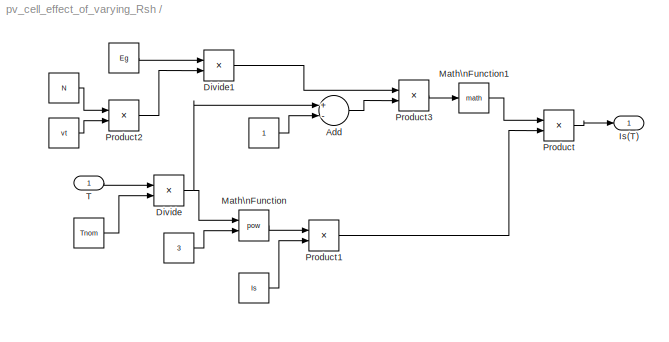
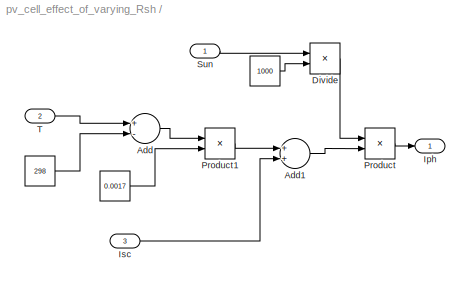
MODEL pv_cell_effect_of_varying_Rsh
KIND model
BLOCK [SubSystem]   
  Ports = [3, 1]
  RequestExecContextInheritance = off
  SID = 1
BLOCK [Constant]                 
  SID = 38
  Value = 1000
BLOCK [Constant]                  
  SID = 83
  Value = 273.15
BLOCK [Constant]                     
  SID = 77
BLOCK [Constant]                                
  SID = 75
  Value = 1.38E-23
BLOCK [SubSystem]                                                      
  Ports = [1, 1]
  RequestExecContextInheritance = off
  SID = 15
BLOCK [Constant]                                                      /  
  SID = 22
  Value = 3
BLOCK [Constant]                                                      /      
  SID = 24
  Value = Is
BLOCK [Constant]                                                      /        
  SID = 20
  Value = Tnom
BLOCK [Constant]                                                      /                      
  SID = 29
  Value = Eg
BLOCK [Constant]                                                      /                             
  SID = 34
BLOCK [Constant]                                                      /                              
  SID = 28
  Value = N
BLOCK [Constant]                                                      /                               
  SID = 27
  Value = vt
BLOCK [Sum]                                                      /Add
  InputSameDT = off
  Inputs = +-
  OutDataTypeStr = Inherit: Inherit via internal rule
  Ports = [2, 1]
  SID = 33
  SaturateOnIntegerOverflow = off
BLOCK [Product]                                                      /Divide
  InputSameDT = off
  Inputs = */
  OutDataTypeStr = Inherit: Inherit via internal rule
  Ports = [2, 1]
  RndMeth = Floor
  SID = 19
  SaturateOnIntegerOverflow = off
BLOCK [Product]                                                      /Divide1
  InputSameDT = off
  Inputs = */
  OutDataTypeStr = Inherit: Inherit via internal rule
  Ports = [2, 1]
  RndMeth = Floor
  SID = 25
  SaturateOnIntegerOverflow = off
BLOCK [Outport]                                                      /Is(T)
  IconDisplay = Port number
  SID = 17
BLOCK [Math]                                                      /Math\nFunction
  Operator = pow
  Ports = [2, 1]
  SID = 21
BLOCK [Math]                                                      /Math\nFunction1
  Ports = [1, 1]
  SID = 30
BLOCK [Product]                                                      /Product
  InputSameDT = off
  OutDataTypeStr = Inherit: Inherit via internal rule
  Ports = [2, 1]
  SID = 18
  SaturateOnIntegerOverflow = off
BLOCK [Product]                                                      /Product1
  InputSameDT = off
  OutDataTypeStr = Inherit: Inherit via internal rule
  Ports = [2, 1]
  SID = 23
  SaturateOnIntegerOverflow = off
BLOCK [Product]                                                      /Product2
  InputSameDT = off
  OutDataTypeStr = Inherit: Inherit via internal rule
  Ports = [2, 1]
  SID = 26
  SaturateOnIntegerOverflow = off
BLOCK [Product]                                                      /Product3
  InputSameDT = off
  OutDataTypeStr = Inherit: Inherit via internal rule
  Ports = [2, 1]
  SID = 31
  SaturateOnIntegerOverflow = off
BLOCK [Inport]                                                      /T
  IconDisplay = Port number
  SID = 16
BLOCK [Constant]   /    
  SID = 12
  Value = 0.0017
BLOCK [Constant]   /     
  SID = 9
  Value = 298
BLOCK [Constant]   /                         
  SID = 8
  Value = 1000
BLOCK [Sum]   /Add
  InputSameDT = off
  Inputs = +-
  OutDataTypeStr = Inherit: Inherit via internal rule
  Ports = [2, 1]
  SID = 10
  SaturateOnIntegerOverflow = off
BLOCK [Sum]   /Add1
  InputSameDT = off
  OutDataTypeStr = Inherit: Inherit via internal rule
  Ports = [2, 1]
  SID = 13
  SaturateOnIntegerOverflow = off
BLOCK [Product]   /Divide
  InputSameDT = off
  Inputs = */
  OutDataTypeStr = Inherit: Inherit via internal rule
  Ports = [2, 1]
  RndMeth = Floor
  SID = 7
  SaturateOnIntegerOverflow = off
BLOCK [Outport]   /Iph
  IconDisplay = Port number
  SID = 3
BLOCK [Inport]   /Isc
  IconDisplay = Port number
  Port = 3
  SID = 5
BLOCK [Product]   /Product
  InputSameDT = off
  OutDataTypeStr = Inherit: Inherit via internal rule
  Ports = [2, 1]
  SID = 6
  SaturateOnIntegerOverflow = off
BLOCK [Product]   /Product1
  InputSameDT = off
  OutDataTypeStr = Inherit: Inherit via internal rule
  Ports = [2, 1]
  SID = 11
  SaturateOnIntegerOverflow = off
BLOCK [Inport]   /Sun
  IconDisplay = Port number
  SID = 2
BLOCK [Inport]   /T
  IconDisplay = Port number
  Port = 2
  SID = 4
BLOCK [Sum] Add
  InputSameDT = off
  Inputs = +-
  OutDataTypeStr = Inherit: Inherit via internal rule
  Ports = [2, 1]
  SID = 40
  SaturateOnIntegerOverflow = off
BLOCK [Sum] Add1
  InputSameDT = off
  OutDataTypeStr = Inherit: Inherit via internal rule
  Ports = [2, 1]
  SID = 42
  SaturateOnIntegerOverflow = off
BLOCK [Sum] Add2
  InputSameDT = off
  Inputs = +-
  OutDataTypeStr = Inherit: Inherit via internal rule
  Ports = [2, 1]
  SID = 47
  SaturateOnIntegerOverflow = off
BLOCK [Sum] Add3
  InputSameDT = off
  OutDataTypeStr = Inherit: Inherit via internal rule
  Ports = [2, 1]
  SID = 52
  SaturateOnIntegerOverflow = off
BLOCK [Sum] Add4
  InputSameDT = off
  OutDataTypeStr = Inherit: Inherit via internal rule
  Ports = [2, 1]
  SID = 82
  SaturateOnIntegerOverflow = off
BLOCK [Constant] Constant4
  SID = 49
BLOCK [Display] Display
  Decimation = 1
  Ports = [1]
  SID = 62
BLOCK [Display] Display1
  Decimation = 1
  Ports = [1]
  SID = 63
BLOCK [Product] Divide
  InputSameDT = off
  Inputs = */
  OutDataTypeStr = Inherit: Inherit via internal rule
  Ports = [2, 1]
  RndMeth = Floor
  SID = 43
  SaturateOnIntegerOverflow = off
BLOCK [Product] Divide1
  InputSameDT = off
  Inputs = */
  OutDataTypeStr = Inherit: Inherit via internal rule
  Ports = [2, 1]
  RndMeth = Floor
  SID = 51
  SaturateOnIntegerOverflow = off
BLOCK [From] From
  SID = 41
BLOCK [From] From1
  SID = 76
BLOCK [Goto] Goto
  SID = 39
BLOCK [Reference] I-V characteristic  REF=simulink/Sinks/XY Graph
  Ports = [2]
  SID = 70
  SourceBlock = simulink/Sinks/XY Graph
  SourceProductBaseCode = SL
  SourceProductName = Simulink
  SourceType = XY scope.
  st = -1
  xmax = 0.6
  xmin = 0
  ymax = 4
  ymin = 0
BLOCK [Constant] Isc
  SID = 36
  Value = 3.8
BLOCK [Math] Math\nFunction
  Ports = [1, 1]
  SID = 48
BLOCK [Reference] PV power (Vpv)  REF=simulink/Sinks/XY Graph
  Ports = [2]
  SID = 68
  SourceBlock = simulink/Sinks/XY Graph
  SourceProductBaseCode = SL
  SourceProductName = Simulink
  SourceType = XY scope.
  st = -1
  xmax = 0.6
  xmin = 0
  ymax = 4
  ymin = 0
BLOCK [Product] Product
  InputSameDT = off
  OutDataTypeStr = Inherit: Inherit via internal rule
  Ports = [2, 1]
  SID = 45
  SaturateOnIntegerOverflow = off
BLOCK [Product] Product1
  InputSameDT = off
  OutDataTypeStr = Inherit: Inherit via internal rule
  Ports = [2, 1]
  SID = 59
  SaturateOnIntegerOverflow = off
BLOCK [Product] Product2
  InputSameDT = off
  Inputs = 3
  OutDataTypeStr = Inherit: Inherit via internal rule
  Ports = [3, 1]
  SID = 74
  SaturateOnIntegerOverflow = off
BLOCK [Gain] Rs
  Gain = 0.001
  OutDataTypeStr = Inherit: Inherit via internal rule
  ParamDataTypeStr = Inherit: Inherit via internal rule
  SID = 54
  SaturateOnIntegerOverflow = off
BLOCK [Reference] Rsh  REF=simulink/Sources/Repeating\nSequence\nStair
  ConRadixGroup = Best Precision: Vector-wise
  LockScale = off
  OutDataType = float('double')
  OutDataTypeStr = float('double')
  OutMax = []
  OutMin = []
  OutScaling = 2^-12
  OutValues = [1000 10 1].'
  OutputDataTypeScalingMode = Specify via dialog
  Ports = [0, 1]
  SID = 78
  SourceBlock = simulink/Sources/Repeating\nSequence\nStair
  SourceProductBaseCode = SL
  SourceProductName = Simulink
  SourceType = Repeating Sequence Stair
  tsamp = 1
BLOCK [Constant] T
  SID = 44
  Value = 27
BLOCK [Reference] Vpv  REF=simulink/Sources/Repeating\nSequence
  Ports = [0, 1]
  SID = 71
  SourceBlock = simulink/Sources/Repeating\nSequence
  SourceProductBaseCode = SL
  SourceProductName = Simulink
  SourceType = Repeating table
  rep_seq_t = [0 1 2]
  rep_seq_y = [-0.1  0.6 -0.1]
BLOCK [Gain] q
  Gain = 1.6e-19
  OutDataTypeStr = Inherit: Inherit via internal rule
  ParamDataTypeStr = Inherit: Inherit via internal rule
  SID = 73
  SaturateOnIntegerOverflow = off
ANNOTATION (root): Model of PV cell-varying Rsh\nAuthor:S.MOTAHHIR\nemail: <email>
LINE                                                      /                               :1 ->                                                      /Product2:2
LINE                                                      /                              :1 ->                                                      /Product2:1
LINE                                                      /                             :1 ->                                                      /Add:2
LINE                                                      /                      :1 ->                                                      /Divide1:1
LINE                                                      /        :1 ->                                                      /Divide:2
LINE                                                      /      :1 ->                                                      /Product1:2
LINE                                                      /  :1 ->                                                      /Math\nFunction:2
LINE                                                      /Add:1 ->                                                      /Product3:2
LINE                                                      /Divide1:1 ->                                                      /Product3:1
NET                                                      /Divide:1 ->                                                      /Add:1,                                                      /Math\nFunction:1
LINE                                                      /Math\nFunction1:1 ->                                                      /Product:1
LINE                                                      /Math\nFunction:1 ->                                                      /Product1:1
LINE                                                      /Product1:1 ->                                                      /Product:2
LINE                                                      /Product2:1 ->                                                      /Divide1:2
LINE                                                      /Product3:1 ->                                                      /Math\nFunction1:1
LINE                                                      /Product:1 ->                                                      /Is(T):1
LINE                                                      /T:1 ->                                                      /Divide:1
NET                                                      :1 -> Display1:1, Product:2
LINE                                :1 -> Product2:1
LINE                     :1 -> Product2:2
LINE                  :1 -> Add4:1
LINE                 :1 ->   :1
LINE   /                         :1 ->   /Divide:2
LINE   /     :1 ->   /Add:2
LINE   /    :1 ->   /Product1:2
LINE   /Add1:1 ->   /Product:2
LINE   /Add:1 ->   /Product1:1
LINE   /Divide:1 ->   /Product:1
LINE   /Isc:1 ->   /Add1:2
LINE   /Product1:1 ->   /Add1:1
LINE   /Product:1 ->   /Iph:1
LINE   /Sun:1 ->   /Divide:1
LINE   /T:1 ->   /Add:1
NET   :1 -> Add:1, Display:1
LINE Add1:1 -> Add:2
LINE Add2:1 -> Product:1
NET Add3:1 -> Divide:1, q:1
NET Add4:1 ->   :2, Goto:1
NET Add:1 -> I-V characteristic:2, Product1:2, Rs:1
LINE Constant4:1 -> Add2:2
LINE Divide1:1 -> Math\nFunction:1
LINE Divide:1 -> Add1:2
LINE From1:1 -> Product2:3
LINE From:1 ->                                                      :1
LINE Isc:1 ->   :3
LINE Math\nFunction:1 -> Add2:1
LINE Product1:1 -> PV power (Vpv):2
LINE Product2:1 -> Divide1:2
LINE Product:1 -> Add1:1
LINE Rs:1 -> Add3:2
LINE Rsh:1 -> Divide:2
LINE T:1 -> Add4:2
NET Vpv:1 -> Add3:1, I-V characteristic:1, PV power (Vpv):1, Product1:1
LINE q:1 -> Divide1:1
note: NET lines group one-source signal fan-out (src -> all destinations, sorted); 1:1 wires keep LINE
